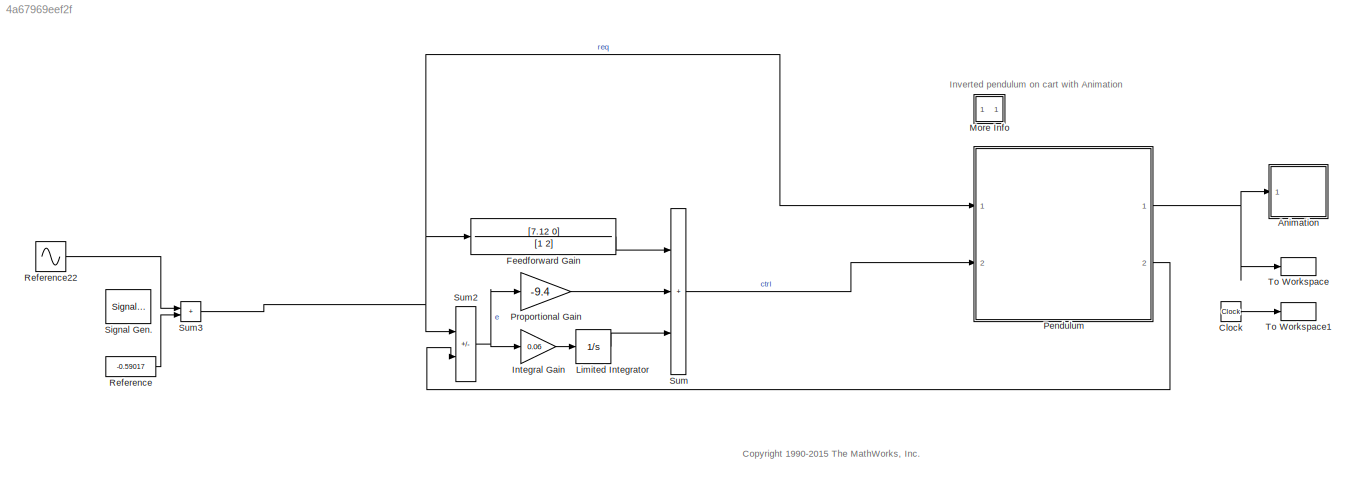
MODEL slx_4a67969eef2f
KIND model
CONFIG AbsTol = 1e-6
CONFIG EnableMultiTasking = off
CONFIG FixedStep = auto
CONFIG MaxStep = 0.02
CONFIG MinStep = auto
CONFIG RelTol = 1e-3
CONFIG SampleTimeConstraint = Unconstrained
CONFIG SolverName = ode45
CONFIG StartTime = 0
CONFIG StopTime = inf
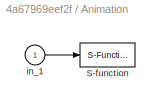
BLOCK [SubSystem] Animation
  Ports = [1]
  RequestExecContextInheritance = off
BLOCK [S-Function] Animation/S-function
  DeleteFcn = pendan([],[],[],'DeleteBlock');
  EnableBusSupport = off
  FunctionName = pendan
  Parameters = RefBlock
  Ports = [1]
  SFcnIsStateOwnerBlock = off
  SFunctionDeploymentMode = off
BLOCK [Inport] Animation/in_1
BLOCK [Clock] Clock
BLOCK [TransferFcn] Feedforward Gain
  Denominator = [1 2]
  Numerator = [7.12 0]
BLOCK [Gain] Integral Gain
  Gain = 0.06
  OutDataTypeStr = Inherit: Same as input
  ParamDataTypeStr = Inherit: Same as input
  SaturateOnIntegerOverflow = on
BLOCK [Integrator] Limited Integrator
  LimitOutput = on
  LowerSaturationLimit = -5
  Ports = [1, 1]
  UpperSaturationLimit = 5
BLOCK [SubSystem] More Info
  OpenFcn = showExample('simulink_general/penddemoExample')
  Ports = []
  RequestExecContextInheritance = off
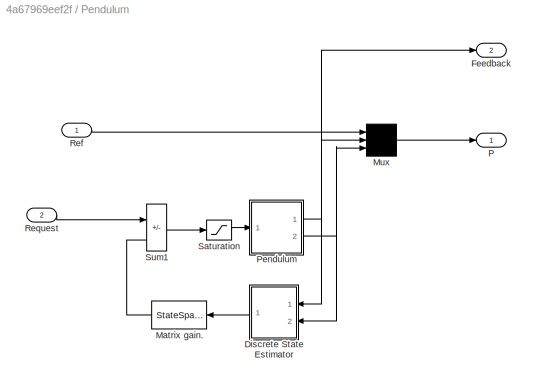
BLOCK [SubSystem] Pendulum
  Ports = [2, 2]
  RequestExecContextInheritance = off
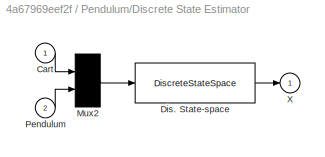
BLOCK [SubSystem] Pendulum/Discrete State Estimator
  Ports = [2, 1]
  RequestExecContextInheritance = off
BLOCK [Inport] Pendulum/Discrete State Estimator/Cart
BLOCK [DiscreteStateSpace] Pendulum/Discrete State Estimator/Dis. State-space
  A = zeros(2)
  B = -eye(2)/Ts
  C = [0 0; 1 0; 0 0; 0 1]
  D = [1 0; 1/Ts 0; 0 1; 0 1/Ts]
  SampleTime = Ts
BLOCK [Mux] Pendulum/Discrete State Estimator/Mux2
  Inputs = 2
  Ports = [2, 1]
BLOCK [Inport] Pendulum/Discrete State Estimator/Pendulum
  Port = 2
BLOCK [Outport] Pendulum/Discrete State Estimator/X
  InitialOutput = 0
  VectorParamsAs1DForOutWhenUnconnected = off
BLOCK [Outport] Pendulum/Feedback
  Port = 2
BLOCK [StateSpace] Pendulum/Matrix gain.
  A = []
  B = []
  C = []
  D = K
  InitialCondition = 0
  Ports = [1, 1]
BLOCK [Mux] Pendulum/Mux
  Inputs = 3
  Ports = [3, 1]
BLOCK [Outport] Pendulum/P
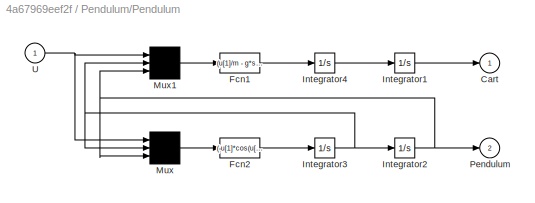
BLOCK [SubSystem] Pendulum/Pendulum
  Ports = [1, 2]
  RequestExecContextInheritance = off
BLOCK [Outport] Pendulum/Pendulum/Cart
  InitialOutput = 0
  VectorParamsAs1DForOutWhenUnconnected = off
BLOCK [Fcn] Pendulum/Pendulum/Fcn1
  Expr = (u[1]/m - g*sin(u[3])*cos(u[3]) + l*power(u[2],2)*sin(u[3]))/(Mcart/m + power(sin(u[3]),2))
BLOCK [Fcn] Pendulum/Pendulum/Fcn2
  Expr = (-u[1]*cos(u[3])/m + (Mcart+m)*g*sin(u[3])/m - l*power(u[2],2)*sin(u[3])*cos(u[3]))/(l*(Mcart/m + power(sin(u[3]),2)))
BLOCK [Integrator] Pendulum/Pendulum/Integrator1
  Ports = [1, 1]
BLOCK [Integrator] Pendulum/Pendulum/Integrator2
  Ports = [1, 1]
BLOCK [Integrator] Pendulum/Pendulum/Integrator3
  Ports = [1, 1]
BLOCK [Integrator] Pendulum/Pendulum/Integrator4
  Ports = [1, 1]
BLOCK [Mux] Pendulum/Pendulum/Mux
  Inputs = 3
  Ports = [3, 1]
BLOCK [Mux] Pendulum/Pendulum/Mux1
  Inputs = 3
  Ports = [3, 1]
BLOCK [Outport] Pendulum/Pendulum/Pendulum
  InitialOutput = 0
  Port = 2
  VectorParamsAs1DForOutWhenUnconnected = off
BLOCK [Inport] Pendulum/Pendulum/U
BLOCK [Inport] Pendulum/Ref
BLOCK [Inport] Pendulum/Request
  Port = 2
BLOCK [Saturate] Pendulum/Saturation
  LowerLimit = -10
  UpperLimit = 10
BLOCK [Sum] Pendulum/Sum1
  IconShape = rectangular
  InputSameDT = on
  Inputs = +-
  OutDataTypeStr = Inherit: Same as first input
  Ports = [2, 1]
  SaturateOnIntegerOverflow = on
BLOCK [Gain] Proportional Gain
  Gain = -9.4
  OutDataTypeStr = Inherit: Same as input
  ParamDataTypeStr = Inherit: Same as input
  SaturateOnIntegerOverflow = on
BLOCK [Constant] Reference
  Value = -0.59017
BLOCK [Sin] Reference22
  Amplitude = 2
  Frequency = 0.5
  Ports = [0, 1]
BLOCK [SignalGenerator] Signal Gen.
  Amplitude = 0.000000
  Frequency = 0.400000
  Ports = [0, 1]
  Units = rad/sec
BLOCK [Sum] Sum
  IconShape = rectangular
  InputSameDT = on
  Inputs = +++
  OutDataTypeStr = Inherit: Same as first input
  Ports = [3, 1]
  SaturateOnIntegerOverflow = on
BLOCK [Sum] Sum2
  IconShape = rectangular
  InputSameDT = on
  Inputs = +-
  OutDataTypeStr = Inherit: Same as first input
  Ports = [2, 1]
  SaturateOnIntegerOverflow = on
BLOCK [Sum] Sum3
  IconShape = rectangular
  InputSameDT = on
  OutDataTypeStr = Inherit: Same as first input
  Ports = [2, 1]
  SaturateOnIntegerOverflow = on
BLOCK [ToWorkspace] To Workspace
  Ports = [1]
  SampleTime = 0.1
  VariableName = y
BLOCK [ToWorkspace] To Workspace1
  Ports = [1]
  SampleTime = 0.1
  VariableName = t
ANNOTATION (root): <copyright redacted>
ANNOTATION (root): Inverted pendulum on cart with Animation
LINE Animation/in_1:1 -> Animation/S-function:1
LINE Clock:1 -> To Workspace1:1
LINE Feedforward Gain:1 -> Sum:1
LINE Integral Gain:1 -> Limited Integrator:1
LINE Limited Integrator:1 -> Sum:3
LINE Pendulum/Discrete State Estimator/Cart:1 -> Pendulum/Discrete State Estimator/Mux2:1
LINE Pendulum/Discrete State Estimator/Dis. State-space:1 -> Pendulum/Discrete State Estimator/X:1
LINE Pendulum/Discrete State Estimator/Mux2:1 -> Pendulum/Discrete State Estimator/Dis. State-space:1
LINE Pendulum/Discrete State Estimator/Pendulum:1 -> Pendulum/Discrete State Estimator/Mux2:2
LINE Pendulum/Discrete State Estimator:1 -> Pendulum/Matrix gain.:1
LINE Pendulum/Matrix gain.:1 -> Pendulum/Sum1:2
LINE Pendulum/Mux:1 -> Pendulum/P:1
LINE Pendulum/Pendulum/Fcn1:1 -> Pendulum/Pendulum/Integrator4:1
LINE Pendulum/Pendulum/Fcn2:1 -> Pendulum/Pendulum/Integrator3:1
LINE Pendulum/Pendulum/Integrator1:1 -> Pendulum/Pendulum/Cart:1
NET Pendulum/Pendulum/Integrator2:1 -> Pendulum/Pendulum/Mux1:3, Pendulum/Pendulum/Mux:3, Pendulum/Pendulum/Pendulum:1
NET Pendulum/Pendulum/Integrator3:1 -> Pendulum/Pendulum/Integrator2:1, Pendulum/Pendulum/Mux1:2, Pendulum/Pendulum/Mux:2
LINE Pendulum/Pendulum/Integrator4:1 -> Pendulum/Pendulum/Integrator1:1
LINE Pendulum/Pendulum/Mux1:1 -> Pendulum/Pendulum/Fcn1:1
LINE Pendulum/Pendulum/Mux:1 -> Pendulum/Pendulum/Fcn2:1
NET Pendulum/Pendulum/U:1 -> Pendulum/Pendulum/Mux1:1, Pendulum/Pendulum/Mux:1
NET Pendulum/Pendulum:1 -> Pendulum/Discrete State Estimator:1, Pendulum/Feedback:1, Pendulum/Mux:2
NET Pendulum/Pendulum:2 -> Pendulum/Discrete State Estimator:2, Pendulum/Mux:3
LINE Pendulum/Ref:1 -> Pendulum/Mux:1
LINE Pendulum/Request:1 -> Pendulum/Sum1:1
LINE Pendulum/Saturation:1 -> Pendulum/Pendulum:1
LINE Pendulum/Sum1:1 -> Pendulum/Saturation:1
NET Pendulum:1 -> Animation:1, To Workspace:1
LINE Pendulum:2 -> Sum2:2
LINE Proportional Gain:1 -> Sum:2
LINE Reference22:1 -> Sum3:1
LINE Reference:1 -> Sum3:2
NET Sum2:1 -> Integral Gain:1, Proportional Gain:1
NET Sum3:1 -> Feedforward Gain:1, Pendulum:1, Sum2:1
LINE Sum:1 -> Pendulum:2
note: NET lines group one-source signal fan-out (src -> all destinations, sorted); 1:1 wires keep LINE
